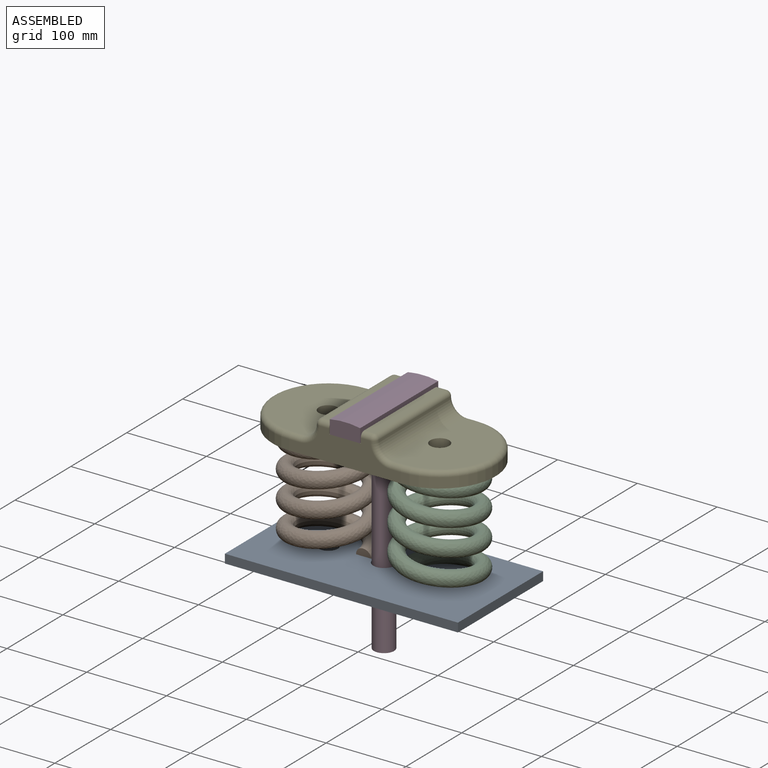
[diagram: assembled view]
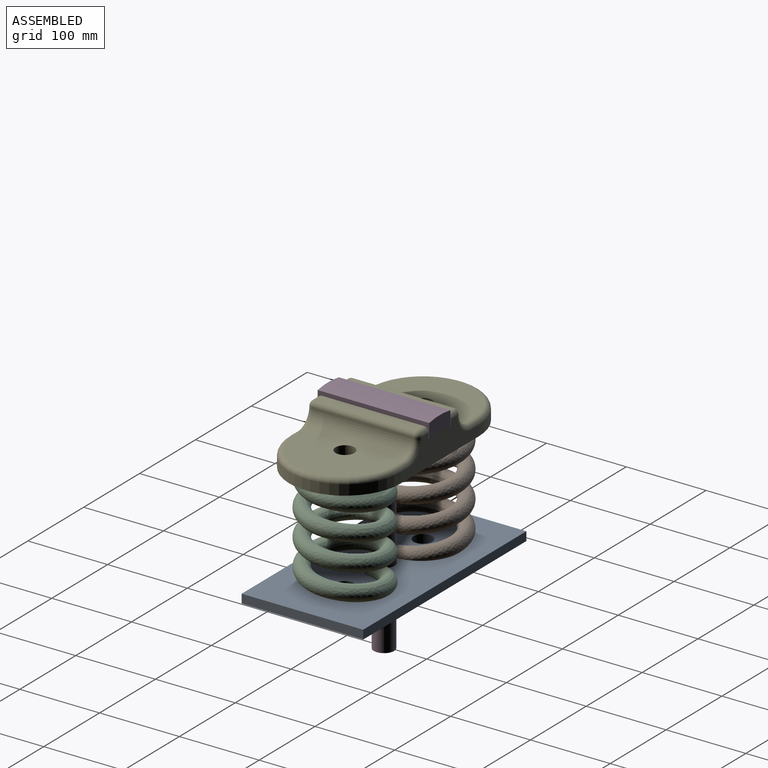
[diagram: assembled view, second angle]
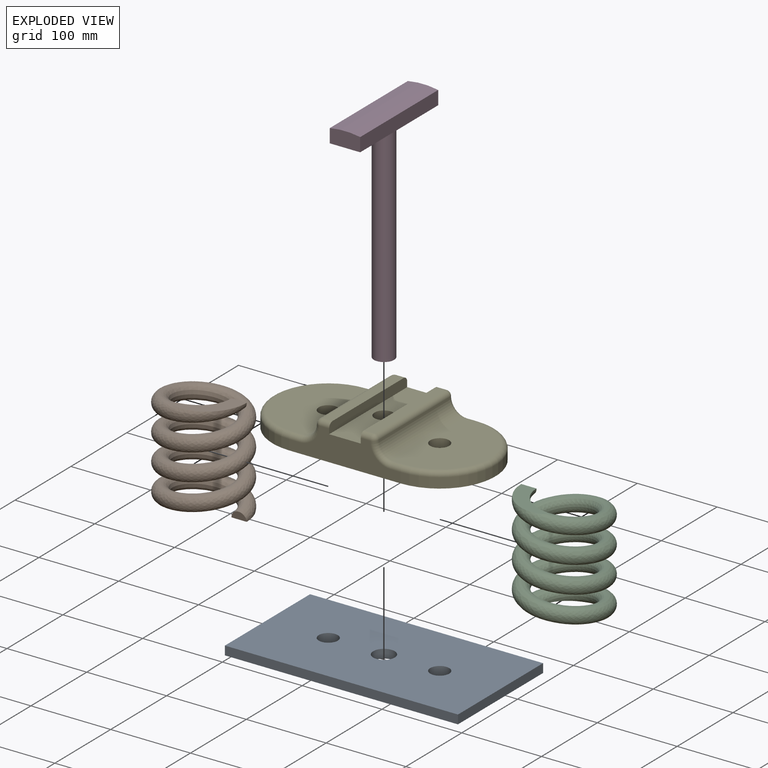
[diagram: exploded view]
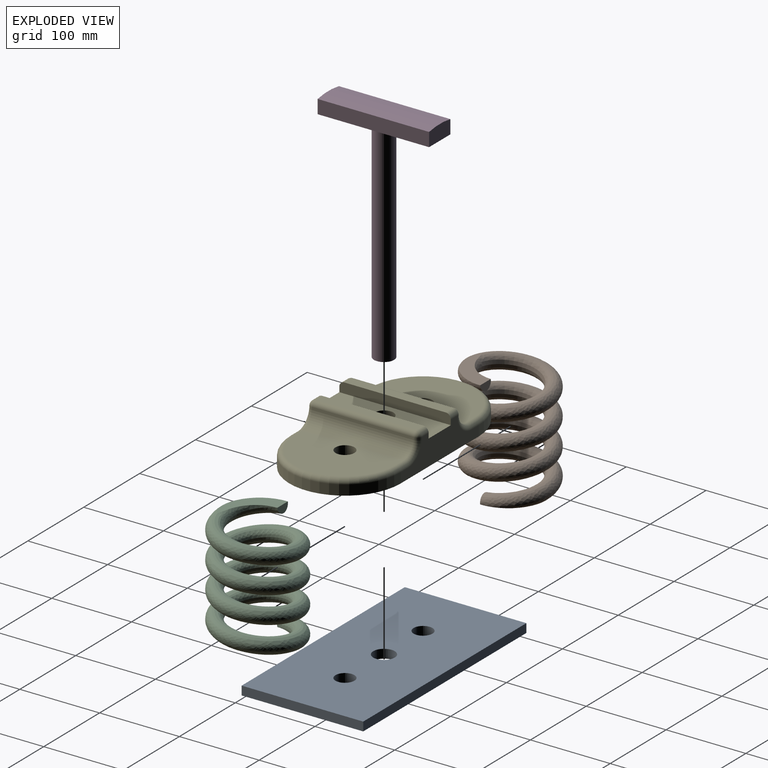
[diagram: exploded view, second angle]
ASSEMBLY  parts=5 mates=4
PART A: 9 faces, bbox 292.1x152.4x11.1 mm
  f0: plane 152.4x11.11mm, normal (1,0,0), area 1693.5mm2, adj f1,f3,f4,f5
  f1: plane 292.1x11.11mm, normal (0,-1,0), area 3246mm2, adj f0,f2,f4,f5
  f2: plane 152.4x11.11mm, normal (-1,0,0), area 1693.5mm2, adj f1,f3,f4,f5
  f3: plane 292.1x11.11mm, normal (0,1,0), area 3246mm2, adj f0,f2,f4,f5
  f4: plane 292.1x152.4mm, normal (0,0,1), area 43053.3mm2, adj f0,f1,f2,f3,f6,f7,f8
  f5: plane 292.1x152.4mm, normal (0,0,-1), area 43053.3mm2, adj f0,f1,f2,f3,f6,f7,f8
  f6: cylinder r=11.91mm len=23.81mm, axis (0,0,-1), area 831.3mm2, adj f4,f5
  f7: cylinder r=11.91mm len=23.81mm, axis (0,0,-1), area 831.3mm2, adj f4,f5
  f8: cylinder r=13.49mm len=26.99mm, axis (0,0,-1), area 942.2mm2, adj f4,f5
PART B: 5 faces, bbox 107.8x107.9x153.8 mm
  f0: plane 19.05x9.46mm, normal (0,-0.99,-0.12), area 142.5mm2, adj f2,f4
  f1: plane 19.05x9.46mm, normal (0,0.99,0.12), area 142.5mm2, adj f2,f3
  f2: bspline ~153.81x107.9mm, area 64378.7mm2, adj f0,f1,f3,f4
  f3: plane 63.57x49.66mm, normal (0,0,1), area 1189.2mm2, adj f1,f2
  f4: plane 63.57x49.66mm, normal (0,0,-1), area 1189.2mm2, adj f0,f2
PART C: 5 faces, bbox 107.5x107.2x153.8 mm
  f0: plane 19.05x9.46mm, normal (0,-0.99,-0.12), area 142.5mm2, adj f2,f4
  f1: plane 19.05x9.46mm, normal (0,0.99,0.12), area 142.5mm2, adj f2,f3
  f2: bspline ~153.81x107.25mm, area 64429.3mm2, adj f0,f1,f3,f4
  f3: plane 63.57x49.66mm, normal (0,0,1), area 1189.2mm2, adj f1,f2
  f4: plane 63.57x49.66mm, normal (0,0,-1), area 1189.2mm2, adj f0,f2
PART D: 8 faces, bbox 38.1x139.7x282.6 mm
  f0: plane 139.7x38.1mm, normal (0,0,-1), area 4815.9mm2, adj f1,f3,f4,f5,f6
  f1: plane 139.7x17.25mm, normal (1,0,0), area 2409.6mm2, adj f0,f2,f4,f5
  f2: cylinder r=101.6mm len=139.7mm, axis (0,1,0), area 5354.3mm2, adj f1,f3,f4,f5
  f3: plane 139.7x17.25mm, normal (-1,0,0), area 2409.6mm2, adj f0,f2,f4,f5
  f4: plane 38.1x19.05mm, normal (0,-1,0), area 703mm2, adj f0,f1,f2,f3
  f5: plane 38.1x19.05mm, normal (0,1,0), area 703mm2, adj f0,f1,f2,f3
  f6: cylinder r=12.7mm len=263.53mm, axis (0,0,1), area 21028.4mm2, adj f0,f7
  f7: plane 25.4x25.4mm, normal (0,0,-1), area 506.7mm2, adj f6
PART E: 37 faces, bbox 290.9x151.2x44.5 mm
  f0: cylinder r=69.85mm len=139.7mm, axis (0,0,-1), area 2786.9mm2, adj f1,f3,f4,f29
  f1: plane 139.7x38.1mm, normal (0,1,0), area 3412mm2, adj f0,f2,f4,f8,f9,f10,f21,f22
  f2: cylinder r=69.85mm len=139.7mm, axis (0,0,-1), area 2786.9mm2, adj f1,f3,f4,f20
  f3: plane 139.7x38.1mm, normal (0,-1,0), area 3412mm2, adj f0,f2,f4,f8,f9,f10,f16,f18
  f4: plane 279.4x139.7mm, normal (0,0,-1), area 33507.9mm2, adj f0,f1,f2,f3,f34,f35,f36
  f5: cylinder r=19.05mm len=127mm, axis (0,1,0), area 3800.3mm2, adj f6,f15,f27,f31
  f6: cylinder r=6.35mm len=127mm, axis (0,1,0), area 1266.8mm2, adj f5,f7,f26,f32
  f7: plane 127x11.91mm, normal (0,0,1), area 1512.1mm2, adj f6,f8,f25,f33
  f8: plane 139.7x12.7mm, normal (-1,0,0), area 1756.9mm2, adj f1,f3,f7,f9,f25,f33
  f9: plane 139.7x39.69mm, normal (0,0,1), area 5099mm2, adj f1,f3,f8,f10,f34
  f10: plane 139.7x12.7mm, normal (1,0,0), area 1756.9mm2, adj f1,f3,f9,f11,f16,f24
  f11: plane 127x11.91mm, normal (0,0,1), area 1512.1mm2, adj f10,f12,f16,f24
  f12: cylinder r=6.35mm len=127mm, axis (0,1,0), area 1266.8mm2, adj f11,f13,f17,f23
  f13: cylinder r=19.05mm len=127mm, axis (0,1,0), area 3800.3mm2, adj f12,f14,f18,f22
  f14: plane 127x76.2mm, normal (0,0,1), area 7501.4mm2, adj f13,f19,f20,f21,f36
  f15: plane 127x76.2mm, normal (0,0,1), area 7501.4mm2, adj f5,f28,f29,f30,f35
  f16: cylinder r=6.35mm len=11.91mm, axis (-1,0,0), area 118.8mm2, adj f3,f10,f11,f17
  f17: sphere r=6.35mm, area 63.3mm2, adj f12,f16,f18
  f18: torus R=25.4mm, axis (0,-1,0), area 334.6mm2, adj f3,f13,f17,f19
  f19: cylinder r=6.35mm len=12.7mm, axis (-1,0,0), area 126.7mm2, adj f3,f14,f18,f20
  f20: torus R=63.5mm, axis (0,0,1), area 2116.5mm2, adj f2,f14,f19,f21
  f21: cylinder r=6.35mm len=12.7mm, axis (1,0,0), area 126.7mm2, adj f1,f14,f20,f22
  f22: torus R=25.4mm, axis (0,-1,0), area 334.6mm2, adj f1,f13,f21,f23
  f23: sphere r=6.35mm, area 63.3mm2, adj f12,f22,f24
  f24: cylinder r=6.35mm len=11.91mm, axis (1,0,0), area 118.8mm2, adj f1,f10,f11,f23
  f25: cylinder r=6.35mm len=11.91mm, axis (1,0,0), area 118.8mm2, adj f1,f7,f8,f26
  f26: sphere r=6.35mm, area 63.3mm2, adj f6,f25,f27
  f27: torus R=25.4mm, axis (0,-1,0), area 334.6mm2, adj f1,f5,f26,f28
  f28: cylinder r=6.35mm len=12.7mm, axis (1,0,0), area 126.7mm2, adj f1,f15,f27,f29
  f29: torus R=63.5mm, axis (0,0,1), area 2116.5mm2, adj f0,f15,f28,f30
  f30: cylinder r=6.35mm len=12.7mm, axis (-1,0,0), area 126.7mm2, adj f3,f15,f29,f31
  f31: torus R=25.4mm, axis (0,-1,0), area 334.6mm2, adj f3,f5,f30,f32
  f32: sphere r=6.35mm, area 63.3mm2, adj f6,f31,f33
  f33: cylinder r=6.35mm len=11.91mm, axis (-1,0,0), area 118.8mm2, adj f3,f7,f8,f32
  f34: cylinder r=11.91mm len=31.75mm, axis (0,0,-1), area 2375.2mm2, adj f4,f9
  f35: cylinder r=11.91mm len=23.81mm, axis (0,0,-1), area 1425.1mm2, adj f4,f15
  f36: cylinder r=11.91mm len=23.81mm, axis (0,0,-1), area 1425.1mm2, adj f4,f14
PLACE A t=(370.84,279.4,0)mm
PLACE B t=(231.14,279.4,0)mm
PLACE C t=(510.54,279.4,0)mm
PLACE D t=(370.84,279.4,0)mm
PLACE E t=(370.84,279.4,0)mm
MATE fastened D.f6 <-> E.f34  axis (0,0,1) through (46.99,279.4,31.75)mm
MATE fastened A.f6 <-> C.f4  axis (0,0,1) through (116.84,279.4,-134.94)mm
MATE fastened E.f0 <-> C.f3  axis (0,0,-1) through (116.84,279.4,0)mm
MATE fastened B.f4 <-> A.f7  axis (0,0,1) through (-22.86,279.4,-134.94)mm
